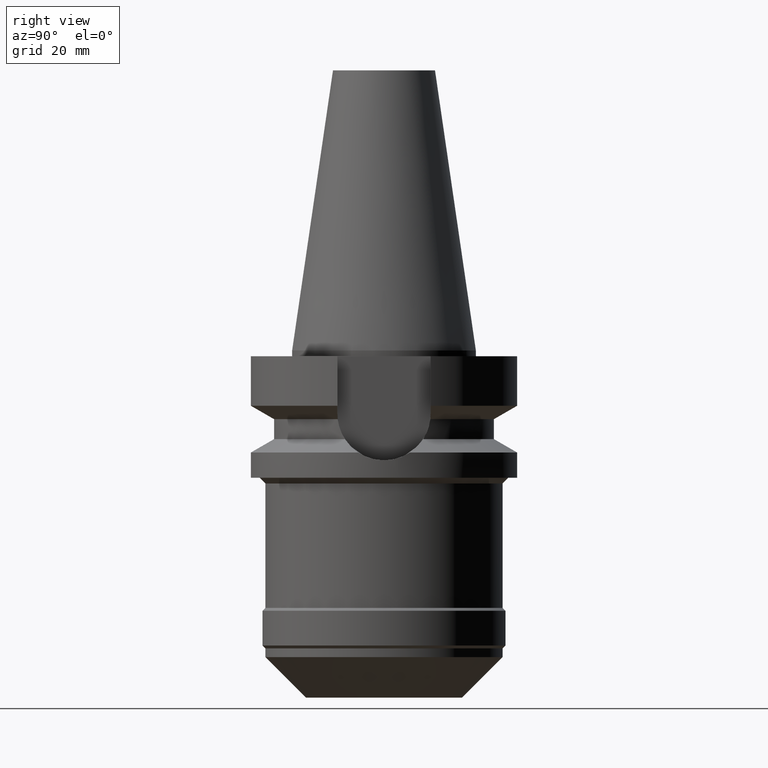
[diagram: clean part render]
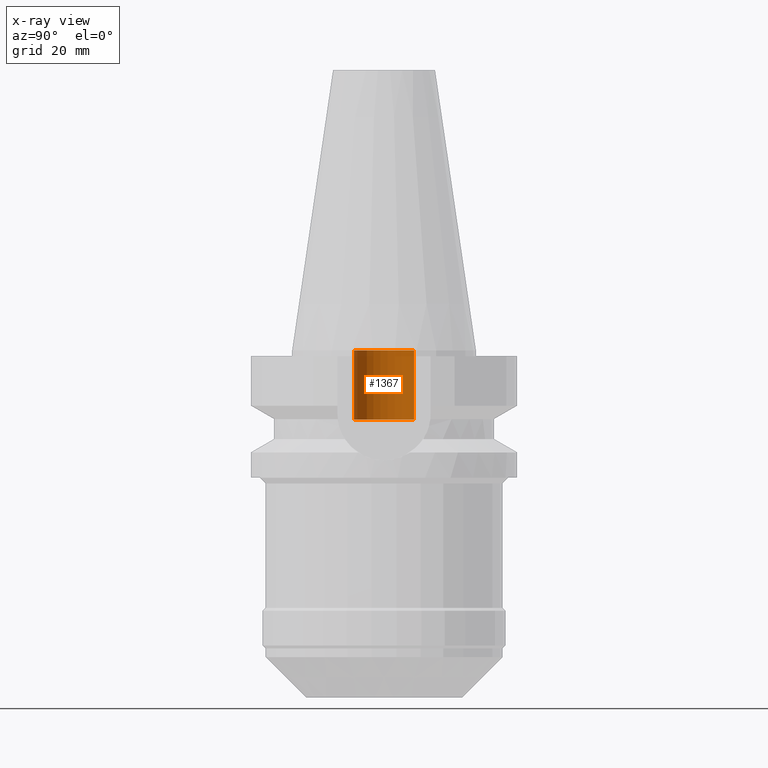
[diagram: x-ray — body ghosted, one internal face saturated and labeled with its STEP entity id]
A machine part, right view, then the same camera in x-ray: the body is ghosted and one INTERNAL B-rep face — a face not visible from any outside direction — is saturated and labeled: STEP entity #1367.
In plain terms, the highlighted cylindrical surface (edge-blend (fillet) strip) has radius 5.2 mm, axis along (0, 0, -1).
Its self-contained STEP definition (entity closure, byte-faithful):
#148=DIRECTION('',(0.E0,0.E0,1.E0));
#149=VECTOR('',#148,1.2E1);
#150=CARTESIAN_POINT('',(0.E0,-5.2E0,-1.2E1));
#151=LINE('',#150,#149);
#155=CARTESIAN_POINT('',(0.E0,1.883751706448E-14,-1.421085471520E-14));
#156=DIRECTION('',(0.E0,0.E0,-1.E0));
#157=DIRECTION('',(0.E0,-1.E0,0.E0));
#158=AXIS2_PLACEMENT_3D('',#155,#156,#157);
#163=DIRECTION('',(0.E0,0.E0,1.E0));
#164=VECTOR('',#163,1.2E1);
#165=CARTESIAN_POINT('',(0.E0,5.2E0,-1.2E1));
#166=LINE('',#165,#164);
#186=CARTESIAN_POINT('',(0.E0,1.883751706448E-14,-1.2E1));
#187=DIRECTION('',(0.E0,0.E0,-1.E0));
#188=DIRECTION('',(0.E0,-1.E0,0.E0));
#189=AXIS2_PLACEMENT_3D('',#186,#187,#188);
#1099=CARTESIAN_POINT('',(0.E0,5.2E0,0.E0));
#1100=VERTEX_POINT('',#1099);
#1101=CARTESIAN_POINT('',(0.E0,-5.2E0,0.E0));
#1102=VERTEX_POINT('',#1101);
#1103=CARTESIAN_POINT('',(0.E0,5.2E0,-1.2E1));
#1104=VERTEX_POINT('',#1103);
#1105=CARTESIAN_POINT('',(0.E0,-5.2E0,-1.2E1));
#1106=VERTEX_POINT('',#1105);
#1353=CARTESIAN_POINT('',(0.E0,1.883751706448E-14,5.382E1));
#1354=DIRECTION('',(0.E0,0.E0,-1.E0));
#1355=DIRECTION('',(0.E0,-1.E0,0.E0));
#1356=AXIS2_PLACEMENT_3D('',#1353,#1354,#1355);
#1357=CYLINDRICAL_SURFACE('',#1356,5.2E0);
#1359=ORIENTED_EDGE('',*,*,#1358,.F.);
#1361=ORIENTED_EDGE('',*,*,#1360,.F.);
#1363=ORIENTED_EDGE('',*,*,#1362,.T.);
#1364=ORIENTED_EDGE('',*,*,#1346,.T.);
#1365=EDGE_LOOP('',(#1359,#1361,#1363,#1364));
#1366=FACE_OUTER_BOUND('',#1365,.F.);
#159=CIRCLE('',#158,5.2E0);
#190=CIRCLE('',#189,5.2E0);
#1346=EDGE_CURVE('',#1102,#1100,#159,.T.);
#1358=EDGE_CURVE('',#1104,#1100,#166,.T.);
#1360=EDGE_CURVE('',#1106,#1104,#190,.T.);
#1362=EDGE_CURVE('',#1106,#1102,#151,.T.);
#1367=ADVANCED_FACE('',(#1366),#1357,.F.);